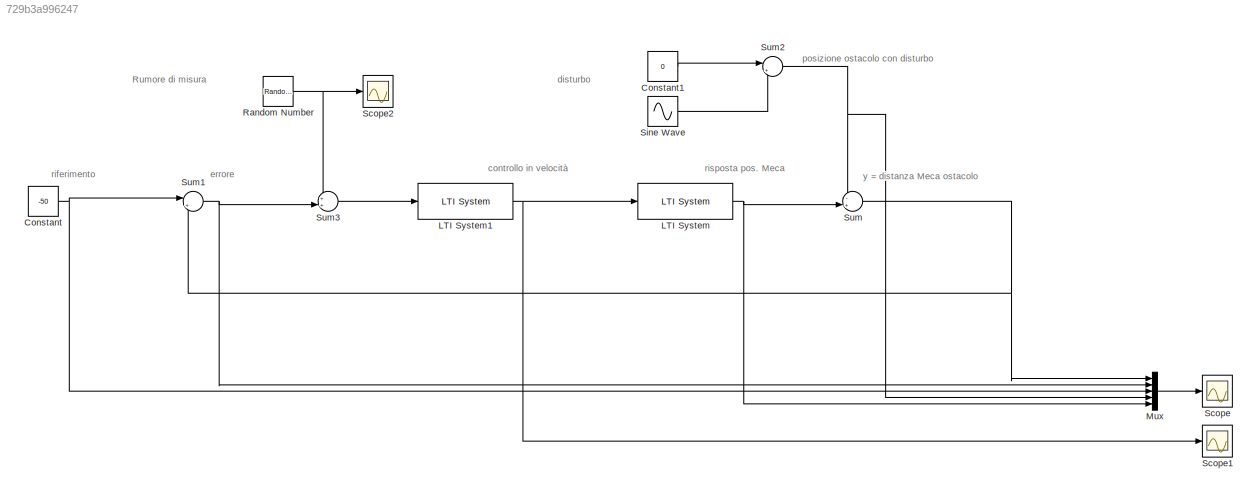
MODEL slx_729b3a996247
KIND model
CONFIG AbsTol = auto
CONFIG EnableMultiTasking = off
CONFIG FixedStep = auto
CONFIG MaxStep = auto
CONFIG MinStep = auto
CONFIG RelTol = 1e-3
CONFIG SampleTimeConstraint = Unconstrained
CONFIG SolverName = VariableStepAuto
CONFIG StartTime = 0.0
CONFIG StopTime = 10.0
BLOCK [Constant] Constant
  SampleTime = Tc
  Value = -50
BLOCK [Constant] Constant1
  Value = 0
BLOCK [Reference] LTI System  REF=cstblocks/LTI System
  Ports = [1, 1]
  SourceBlock = cstblocks/LTI System
  SourceProductBaseCode = CT
  SourceType = LTI Block
BLOCK [Reference] LTI System1  REF=cstblocks/LTI System
  Ports = [1, 1]
  SourceBlock = cstblocks/LTI System
  SourceProductBaseCode = CT
  SourceType = LTI Block
BLOCK [Mux] Mux
  DisplayOption = bar
  Inputs = 5
  Ports = [5, 1]
BLOCK [RandomNumber] Random Number
  SampleTime = Tc
  Variance = 2
BLOCK [Scope] Scope
  Floating = off
  NumInputPorts = 1
  Ports = [1]
  ScopeSpecificationString = Simulink.scopes.TimeScopeBlockCfg('CurrentConfiguration', extmgr.ConfigurationSet(extmgr.Configuration('Core','General UI',true),extmgr.Configuration('Core','Source UI',true),extmgr.Configuration('Sources','WiredSimulink',true),extmgr.Configuration('Visuals','Time Domain',true,'SerializedDisplays',{struct('MinYLimReal','-93.71858','MaxYLimReal','43.7323','YLabelReal','','MinYLimMag','0.00000','Max...<+1561ch>
BLOCK [Scope] Scope1
  Floating = off
  NumInputPorts = 1
  Ports = [1]
  ScopeSpecificationString = Simulink.scopes.TimeScopeBlockCfg('CurrentConfiguration', extmgr.ConfigurationSet(extmgr.Configuration('Core','General UI',true),extmgr.Configuration('Core','Source UI',true),extmgr.Configuration('Sources','WiredSimulink',true,'DataLoggingVariableName','ScopeData1'),extmgr.Configuration('Visuals','Time Domain',true,'SerializedDisplays',{struct('MinYLimReal','-93.71858','MaxYLimReal','43.7323','YLa...<+1600ch>
BLOCK [Scope] Scope2
  Floating = off
  NumInputPorts = 1
  Ports = [1]
  ScopeSpecificationString = Simulink.scopes.TimeScopeBlockCfg('CurrentConfiguration', extmgr.ConfigurationSet(extmgr.Configuration('Core','General UI',true),extmgr.Configuration('Core','Source UI',true),extmgr.Configuration('Sources','WiredSimulink',true,'DataLoggingVariableName','ScopeData2'),extmgr.Configuration('Visuals','Time Domain',true,'SerializedDisplays',{struct('MinYLimReal','-4.00689','MaxYLimReal','3.89217','YLab...<+1446ch>
BLOCK [Sin] Sine Wave
  Amplitude = 30
  Ports = [0, 1]
  SampleTime = 0
BLOCK [Sum] Sum
  Inputs = -+|
  Ports = [2, 1]
BLOCK [Sum] Sum1
  Inputs = |+-
  Ports = [2, 1]
BLOCK [Sum] Sum2
  Inputs = |++
  Ports = [2, 1]
BLOCK [Sum] Sum3
  Inputs = ++|
  Ports = [2, 1]
ANNOTATION (root): Rumore di misura
ANNOTATION (root): disturbo
ANNOTATION (root): controllo in velocità
ANNOTATION (root): errore
ANNOTATION (root): posizione ostacolo con disturbo
ANNOTATION (root): riferimento
ANNOTATION (root): risposta pos. Meca
ANNOTATION (root): y = distanza Meca ostacolo
LINE Constant1:1 -> Sum2:1
NET Constant:1 -> Mux:3, Sum1:1
NET LTI System1:1 -> LTI System:1, Scope1:1
NET LTI System:1 -> Mux:5, Sum:2
LINE Mux:1 -> Scope:1
NET Random Number:1 -> Scope2:1, Sum3:1
LINE Sine Wave:1 -> Sum2:2
NET Sum1:1 -> Mux:2, Sum3:2
NET Sum2:1 -> Mux:4, Sum:1
LINE Sum3:1 -> LTI System1:1
NET Sum:1 -> Mux:1, Sum1:2
note: NET lines group one-source signal fan-out (src -> all destinations, sorted); 1:1 wires keep LINE
